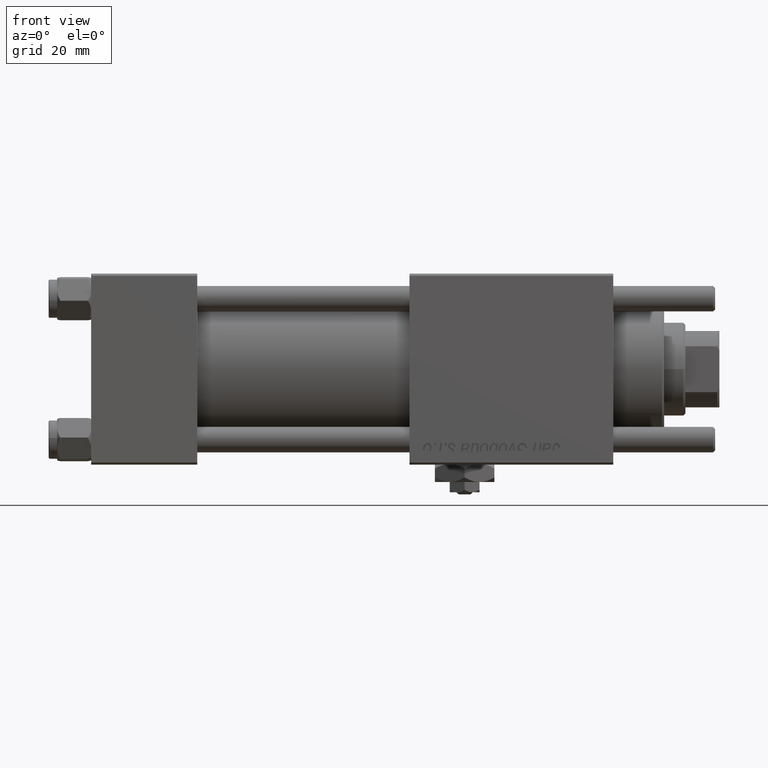
[diagram: clean part render]
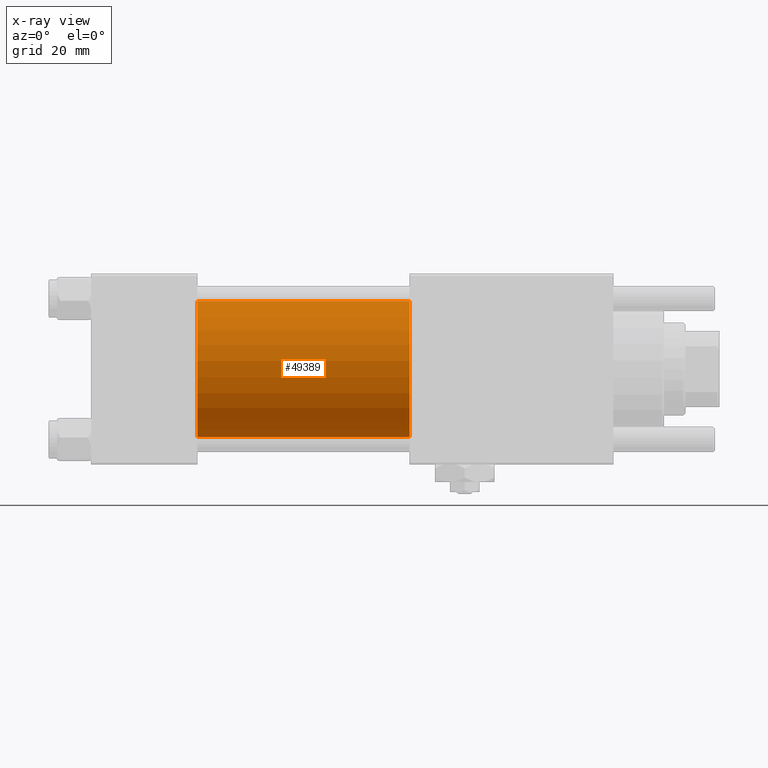
[diagram: x-ray — body ghosted, one internal face saturated and labeled with its STEP entity id]
A machine part, front view, then the same camera in x-ray: the body is ghosted and one INTERNAL B-rep face — a face not visible from any outside direction — is saturated and labeled: STEP entity #49389.
In plain terms, the highlighted cylindrical surface (partial cylindrical patch) has radius 16 mm, axis along (-1, -0, -0).
Its self-contained STEP definition (entity closure, byte-faithful):
#1477 = CARTESIAN_POINT ( 'NONE',  ( 25.00000000000000000, -2.602085213965210642E-15, 16.00000000000000000 ) ) ;
#2581 = VERTEX_POINT ( 'NONE', #51130 ) ;
#6185 = VERTEX_POINT ( 'NONE', #1477 ) ;
#6581 = CARTESIAN_POINT ( 'NONE',  ( 75.00000000000001421, -2.602085213965210642E-15, 16.00000000000000000 ) ) ;
#10183 = CARTESIAN_POINT ( 'NONE',  ( 75.00000000000001421, -2.602085213965210642E-15, 0.000000000000000000 ) ) ;
#11335 = EDGE_CURVE ( 'NONE', #2581, #33666, #18184, .T. ) ;
#11408 = CARTESIAN_POINT ( 'NONE',  ( 75.00000000000001421, -2.602085213965210642E-15, 0.000000000000000000 ) ) ;
#13770 = VECTOR ( 'NONE', #55125, 1000.000000000000000 ) ;
#15739 = VECTOR ( 'NONE', #24062, 1000.000000000000000 ) ;
#16922 = CIRCLE ( 'NONE', #50049, 16.00000000000000000 ) ;
#18184 = CIRCLE ( 'NONE', #56018, 16.00000000000000000 ) ;
#21092 = CARTESIAN_POINT ( 'NONE',  ( 25.00000000000000000, -2.602085213965210642E-15, 0.000000000000000000 ) ) ;
#22778 = CARTESIAN_POINT ( 'NONE',  ( 75.00000000000001421, -6.426503353294456087E-16, -16.00000000000000000 ) ) ;
#24062 = DIRECTION ( 'NONE',  ( -1.000000000000000000, -0.000000000000000000, -0.000000000000000000 ) ) ;
#24838 = ORIENTED_EDGE ( 'NONE', *, *, #48603, .F. ) ;
#27947 = DIRECTION ( 'NONE',  ( 1.000000000000000000, 0.000000000000000000, 0.000000000000000000 ) ) ;
#29203 = DIRECTION ( 'NONE',  ( 0.000000000000000000, 0.000000000000000000, 1.000000000000000000 ) ) ;
#29774 = CYLINDRICAL_SURFACE ( 'NONE', #35625, 16.00000000000000000 ) ;
#32145 = EDGE_LOOP ( 'NONE', ( #38443, #46395, #55054, #24838 ) ) ;
#33666 = VERTEX_POINT ( 'NONE', #22778 ) ;
#34257 = CARTESIAN_POINT ( 'NONE',  ( 25.00000000000000000, -6.426503353294456087E-16, -16.00000000000000000 ) ) ;
#35625 = AXIS2_PLACEMENT_3D ( 'NONE', #11408, #38655, #29203 ) ;
#37346 = CARTESIAN_POINT ( 'NONE',  ( 75.00000000000001421, -6.426503353294456087E-16, -16.00000000000000000 ) ) ;
#38443 = ORIENTED_EDGE ( 'NONE', *, *, #11335, .T. ) ;
#38581 = DIRECTION ( 'NONE',  ( 1.000000000000000000, 0.000000000000000000, 0.000000000000000000 ) ) ;
#38655 = DIRECTION ( 'NONE',  ( -1.000000000000000000, -0.000000000000000000, -0.000000000000000000 ) ) ;
#39268 = EDGE_CURVE ( 'NONE', #6185, #42483, #16922, .T. ) ;
#41279 = DIRECTION ( 'NONE',  ( 0.000000000000000000, 0.000000000000000000, -1.000000000000000000 ) ) ;
#42108 = LINE ( 'NONE', #6581, #15739 ) ;
#42483 = VERTEX_POINT ( 'NONE', #34257 ) ;
#43610 = DIRECTION ( 'NONE',  ( 0.000000000000000000, 0.000000000000000000, -1.000000000000000000 ) ) ;
#46169 = EDGE_CURVE ( 'NONE', #33666, #42483, #55714, .T. ) ;
#46395 = ORIENTED_EDGE ( 'NONE', *, *, #46169, .T. ) ;
#48603 = EDGE_CURVE ( 'NONE', #2581, #6185, #42108, .T. ) ;
#49389 = ADVANCED_FACE ( 'NONE', ( #52568 ), #29774, .F. ) ;
#50049 = AXIS2_PLACEMENT_3D ( 'NONE', #21092, #38581, #43610 ) ;
#51130 = CARTESIAN_POINT ( 'NONE',  ( 75.00000000000001421, -2.602085213965210642E-15, 16.00000000000000000 ) ) ;
#52568 = FACE_OUTER_BOUND ( 'NONE', #32145, .T. ) ;
#55054 = ORIENTED_EDGE ( 'NONE', *, *, #39268, .F. ) ;
#55125 = DIRECTION ( 'NONE',  ( -1.000000000000000000, -0.000000000000000000, -0.000000000000000000 ) ) ;
#55714 = LINE ( 'NONE', #37346, #13770 ) ;
#56018 = AXIS2_PLACEMENT_3D ( 'NONE', #10183, #27947, #41279 ) ;